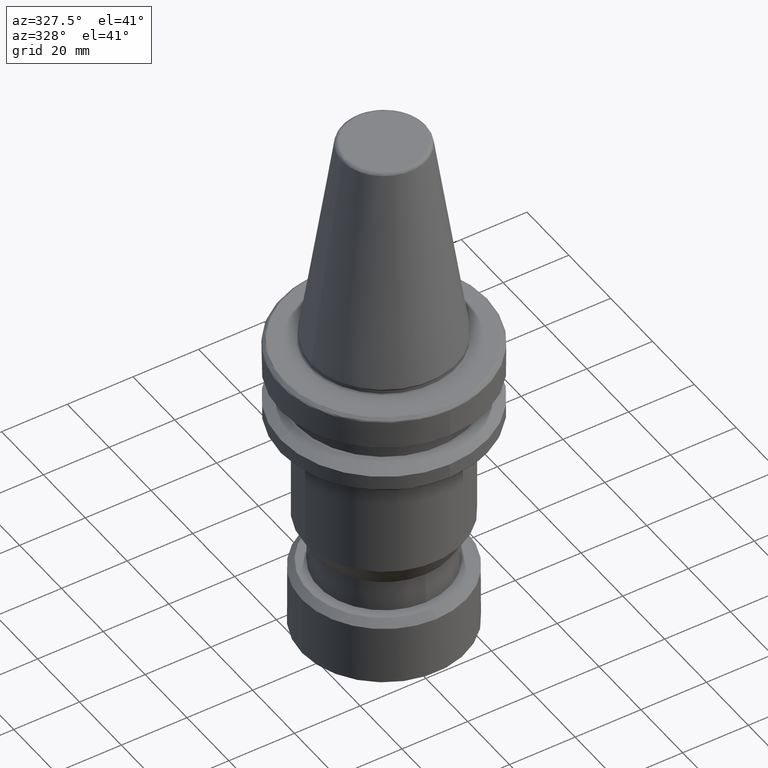
[diagram: clean part render]
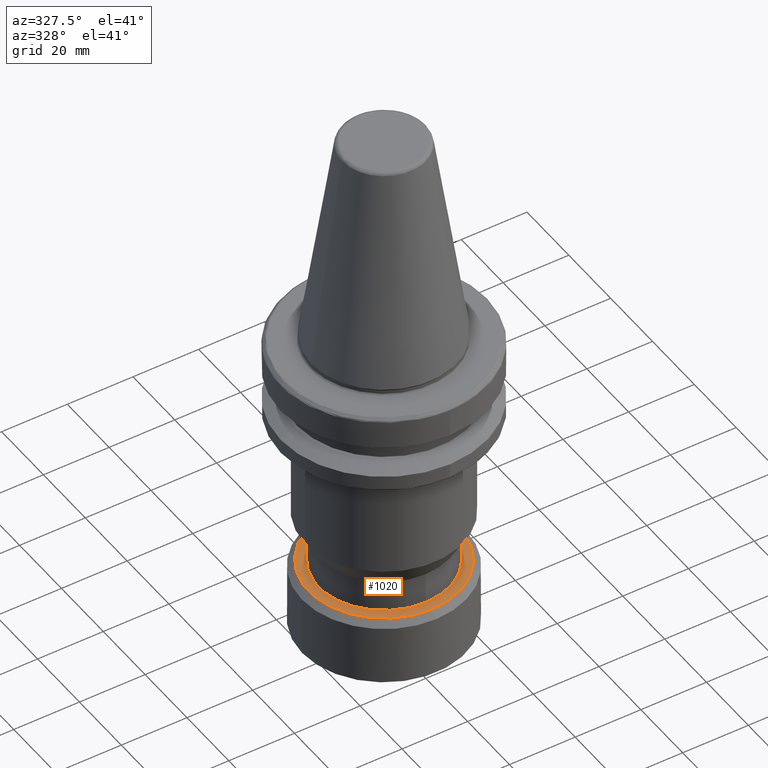
[diagram: same view with one face highlighted and labeled with its STEP entity id]
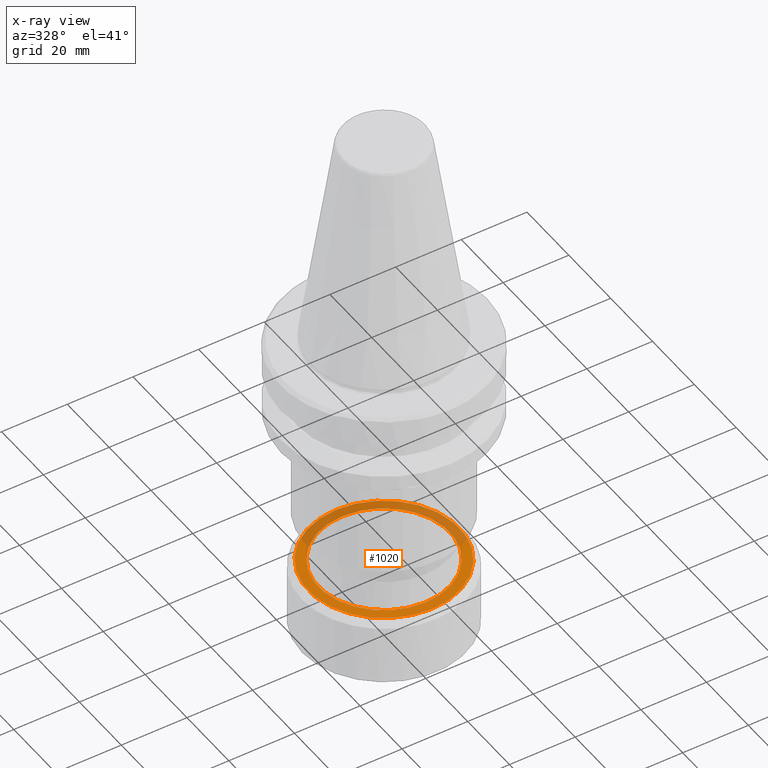
[diagram: x-ray of the same camera — body ghosted, the highlighted face saturated]
A machine part, auxiliary view. The second image highlights one B-rep face of the part: STEP entity #1020.
The next image is the same camera in x-ray: the body ghosted, the highlighted face saturated — about 40% of this face is hidden behind the body in this view.
In plain terms, the highlighted planar face has unit normal (0, 0, -1).
Its self-contained STEP definition (entity closure, byte-faithful):
#5 = AXIS2_PLACEMENT_3D ( 'NONE', #3048, #6, #2289 ) ;
#6 = DIRECTION ( 'NONE',  ( -0.0000000000000000000, -3.016910393003143400E-016, 1.000000000000000000 ) ) ;
#80 = EDGE_CURVE ( 'NONE', #495, #2526, #1706, .T. ) ;
#152 = AXIS2_PLACEMENT_3D ( 'NONE', #3448, #3435, #3428 ) ;
#194 = AXIS2_PLACEMENT_3D ( 'NONE', #252, #2616, #1034 ) ;
#198 = CARTESIAN_POINT ( 'NONE',  ( 0.0000000000000000000, 22.99999999999995700, -76.99999999999995700 ) ) ;
#252 = CARTESIAN_POINT ( 'NONE',  ( 0.0000000000000000000, -1.256041268164505200E-029, -76.99999999999995700 ) ) ;
#262 = DIRECTION ( 'NONE',  ( 0.0000000000000000000, 0.0000000000000000000, -1.000000000000000000 ) ) ;
#361 = PLANE ( 'NONE',  #2433 ) ;
#438 = ORIENTED_EDGE ( 'NONE', *, *, #3199, .F. ) ;
#495 = VERTEX_POINT ( 'NONE', #1735 ) ;
#610 = CIRCLE ( 'NONE', #194, 22.99999999999995700 ) ;
#721 = VERTEX_POINT ( 'NONE', #3336 ) ;
#794 = FACE_OUTER_BOUND ( 'NONE', #2887, .T. ) ;
#1020 = ADVANCED_FACE ( 'NONE', ( #1105, #794 ), #361, .F. ) ;
#1034 = DIRECTION ( 'NONE',  ( 0.0000000000000000000, 1.000000000000000000, 0.0000000000000000000 ) ) ;
#1105 = FACE_BOUND ( 'NONE', #2840, .T. ) ;
#1121 = CARTESIAN_POINT ( 'NONE',  ( 2.443170364298969800E-015, 19.94999999999999900, -77.00000000000000000 ) ) ;
#1164 = EDGE_CURVE ( 'NONE', #721, #1441, #610, .T. ) ;
#1189 = DIRECTION ( 'NONE',  ( 0.0000000000000000000, -3.478142307722921700E-016, 1.000000000000000000 ) ) ;
#1193 = DIRECTION ( 'NONE',  ( 0.0000000000000000000, -1.000000000000000000, -6.956284615445843300E-016 ) ) ;
#1441 = VERTEX_POINT ( 'NONE', #198 ) ;
#1496 = AXIS2_PLACEMENT_3D ( 'NONE', #3460, #1189, #1193 ) ;
#1706 = CIRCLE ( 'NONE', #1496, 19.94999999999999900 ) ;
#1735 = CARTESIAN_POINT ( 'NONE',  ( 0.0000000000000000000, -19.94999999999999900, -77.00000000000001400 ) ) ;
#1814 = ORIENTED_EDGE ( 'NONE', *, *, #2098, .T. ) ;
#2098 = EDGE_CURVE ( 'NONE', #1441, #721, #3238, .T. ) ;
#2289 = DIRECTION ( 'NONE',  ( 0.0000000000000000000, 1.000000000000000000, 0.0000000000000000000 ) ) ;
#2414 = ORIENTED_EDGE ( 'NONE', *, *, #1164, .T. ) ;
#2433 = AXIS2_PLACEMENT_3D ( 'NONE', #2844, #262, #3171 ) ;
#2526 = VERTEX_POINT ( 'NONE', #1121 ) ;
#2616 = DIRECTION ( 'NONE',  ( -0.0000000000000000000, -3.016910393003143400E-016, 1.000000000000000000 ) ) ;
#2840 = EDGE_LOOP ( 'NONE', ( #3260, #438 ) ) ;
#2844 = CARTESIAN_POINT ( 'NONE',  ( 23.27600000000000000, -23.27600000000000000, -77.00000000000000000 ) ) ;
#2887 = EDGE_LOOP ( 'NONE', ( #1814, #2414 ) ) ;
#3048 = CARTESIAN_POINT ( 'NONE',  ( 0.0000000000000000000, -1.256041268164505200E-029, -76.99999999999995700 ) ) ;
#3171 = DIRECTION ( 'NONE',  ( -1.000000000000000000, 0.0000000000000000000, 0.0000000000000000000 ) ) ;
#3199 = EDGE_CURVE ( 'NONE', #2526, #495, #3365, .T. ) ;
#3238 = CIRCLE ( 'NONE', #5, 22.99999999999995700 ) ;
#3260 = ORIENTED_EDGE ( 'NONE', *, *, #80, .F. ) ;
#3336 = CARTESIAN_POINT ( 'NONE',  ( 2.939152317953645500E-015, -22.99999999999995700, -76.99999999999995700 ) ) ;
#3365 = CIRCLE ( 'NONE', #152, 19.94999999999999900 ) ;
#3428 = DIRECTION ( 'NONE',  ( 0.0000000000000000000, -1.000000000000000000, -6.956284615445843300E-016 ) ) ;
#3435 = DIRECTION ( 'NONE',  ( 0.0000000000000000000, -3.478142307722921700E-016, 1.000000000000000000 ) ) ;
#3448 = CARTESIAN_POINT ( 'NONE',  ( 0.0000000000000000000, -4.334241549024509600E-040, -77.00000000000000000 ) ) ;
#3460 = CARTESIAN_POINT ( 'NONE',  ( 0.0000000000000000000, -4.334241549024509600E-040, -77.00000000000000000 ) ) ;